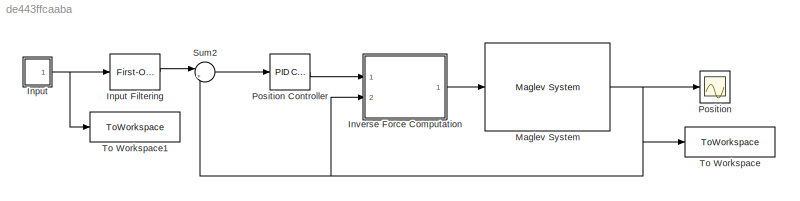
MODEL slx_de443ffcaaba
KIND model
CONFIG AbsTol = auto
CONFIG EnableMultiTasking = off
CONFIG FixedStep = auto
CONFIG MaxStep = auto
CONFIG MinStep = auto
CONFIG RelTol = 1e-3
CONFIG SampleTimeConstraint = Unconstrained
CONFIG SolverName = VariableStepAuto
CONFIG StartTime = 0.0
CONFIG StopTime = 6
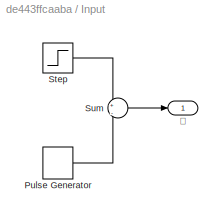
BLOCK [SubSystem] Input
  Ports = [0, 1]
  RequestExecContextInheritance = off
BLOCK [Reference] Input Filtering  REF=spsFirstOrderFilterLib/First-Order
Filter
  Ports = [1, 1]
  SourceBlock = spsFirstOrderFilterLib/First-Order\nFilter
  SourceProductBaseCode = PS
  SourceType = First-Order Filter
BLOCK [DiscretePulseGenerator] Input/Pulse Generator
  Amplitude = d0/2
  Period = 5
  PhaseDelay = 0.5
  Ports = [0, 1]
  PulseType = Time based
  PulseWidth = 50
BLOCK [Step] Input/Step
  After = start
  Before = d0
  SampleTime = 0
  Time = 0
BLOCK [Sum] Input/Sum
  Inputs = +|-
  Ports = [2, 1]
BLOCK [Outport] Input/𝛿
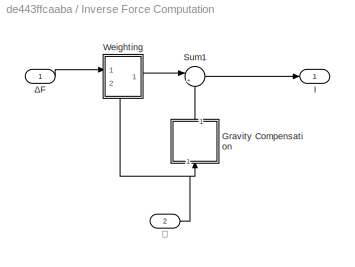
BLOCK [SubSystem] Inverse Force Computation
  Ports = [2, 1]
  RequestExecContextInheritance = off
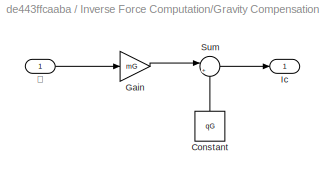
BLOCK [SubSystem] Inverse Force Computation/Gravity Compensation
  NameLocation = right
  Ports = [1, 1]
  RequestExecContextInheritance = off
BLOCK [Constant] Inverse Force Computation/Gravity Compensation/Constant
  NameLocation = right
  Value = qG
BLOCK [Gain] Inverse Force Computation/Gravity Compensation/Gain
  Gain = mG
BLOCK [Outport] Inverse Force Computation/Gravity Compensation/Ic
BLOCK [Sum] Inverse Force Computation/Gravity Compensation/Sum
  Inputs = |++
  Ports = [2, 1]
BLOCK [Inport] Inverse Force Computation/Gravity Compensation/𝛿
BLOCK [Outport] Inverse Force Computation/I
BLOCK [Sum] Inverse Force Computation/Sum1
  Inputs = |++
  Ports = [2, 1]
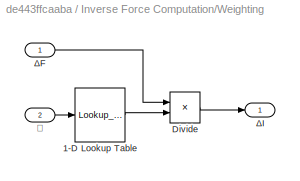
BLOCK [SubSystem] Inverse Force Computation/Weighting
  PortSchema = {"entries":[{"content":{"sides":[{"content":{"connectorIds":["In1"]},"type":"ConnectorPlacement.EquallySpacedRectSide","uuid":"6b47628a-cc08-4372-88a9-27295bde16d5"},{"content":{"connectorIds":["Out1"],"side":"RIGHT"},"type":"ConnectorPlacement.EquallySpacedRectSide","uuid":"4e2a4537-6a79-4c56-b693-16bea0361472"},{"content":{"connectorIds":[],"side":"TOP"},"type":"ConnectorPlacement.EquallySpacedR...<+389ch>
  Ports = [2, 1]
  RequestExecContextInheritance = off
BLOCK [Lookup_n-D] Inverse Force Computation/Weighting/1-D Lookup Table
  BreakpointsForDimension1 = deltasK
  InputPortMap = u0
  InternalRulePriority = Speed
  NumberOfTableDimensions = 1
  Ports = [1, 1]
  RndMeth = Simplest
  Table = grad_est
BLOCK [Product] Inverse Force Computation/Weighting/Divide
  Inputs = */
  Ports = [2, 1]
BLOCK [Inport] Inverse Force Computation/Weighting/ΔF
BLOCK [Outport] Inverse Force Computation/Weighting/ΔI
BLOCK [Inport] Inverse Force Computation/Weighting/𝛿
  Port = 2
BLOCK [Inport] Inverse Force Computation/ΔF
BLOCK [Inport] Inverse Force Computation/𝛿
  Port = 2
BLOCK [Reference] Maglev System  REF=MAGLEV_components/Maglev System
  Ports = [1, 1]
  SourceBlock = MAGLEV_components/Maglev System
  SourceType = Maglev System
BLOCK [Scope] Position
  Floating = off
  NumInputPorts = 1
  Ports = [1]
  ScopeSpecificationString = Simulink.scopes.TimeScopeBlockCfg('CurrentConfiguration', extmgr.ConfigurationSet(extmgr.Configuration('Core','General UI',true),extmgr.Configuration('Core','Source UI',true),extmgr.Configuration('Sources','WiredSimulink',true,'DataLoggingVariableName','ScopeData1'),extmgr.Configuration('Visuals','Time Domain',true,'SerializedDisplays',{struct('MinYLimReal','2.18717','MaxYLimReal','15.31254','YLab...<+1374ch>
BLOCK [Reference] Position Controller  REF=slpidlib/PID Controller
  Ports = [1, 1]
  SourceBlock = slpidlib/PID Controller
  SourceProductBaseCode = SL
  SourceType = PID 1dof
BLOCK [Sum] Sum2
  Inputs = |+-
  Ports = [2, 1]
BLOCK [ToWorkspace] To Workspace
  FixptAsFi = on
  MaxDataPoints = inf
  Ports = [1]
  SampleTime = -1
  SaveFormat = Timeseries
  VariableName = delta
BLOCK [ToWorkspace] To Workspace1
  FixptAsFi = on
  MaxDataPoints = inf
  Ports = [1]
  SampleTime = -1
  SaveFormat = Timeseries
  VariableName = input
LINE Input Filtering:1 -> Sum2:1
LINE Input/Pulse Generator:1 -> Input/Sum:2
LINE Input/Step:1 -> Input/Sum:1
LINE Input/Sum:1 -> Input/𝛿:1
NET Input:1 -> Input Filtering:1, To Workspace1:1
LINE Inverse Force Computation/Gravity Compensation/Constant:1 -> Inverse Force Computation/Gravity Compensation/Sum:2
LINE Inverse Force Computation/Gravity Compensation/Gain:1 -> Inverse Force Computation/Gravity Compensation/Sum:1
LINE Inverse Force Computation/Gravity Compensation/Sum:1 -> Inverse Force Computation/Gravity Compensation/Ic:1
LINE Inverse Force Computation/Gravity Compensation/𝛿:1 -> Inverse Force Computation/Gravity Compensation/Gain:1
LINE Inverse Force Computation/Gravity Compensation:1 -> Inverse Force Computation/Sum1:2
LINE Inverse Force Computation/Sum1:1 -> Inverse Force Computation/I:1
LINE Inverse Force Computation/Weighting/1-D Lookup Table:1 -> Inverse Force Computation/Weighting/Divide:2
LINE Inverse Force Computation/Weighting/Divide:1 -> Inverse Force Computation/Weighting/ΔI:1
LINE Inverse Force Computation/Weighting/ΔF:1 -> Inverse Force Computation/Weighting/Divide:1
LINE Inverse Force Computation/Weighting/𝛿:1 -> Inverse Force Computation/Weighting/1-D Lookup Table:1
LINE Inverse Force Computation/Weighting:1 -> Inverse Force Computation/Sum1:1
LINE Inverse Force Computation/ΔF:1 -> Inverse Force Computation/Weighting:1
NET Inverse Force Computation/𝛿:1 -> Inverse Force Computation/Gravity Compensation:1, Inverse Force Computation/Weighting:2
LINE Inverse Force Computation:1 -> Maglev System:1
NET Maglev System:1 -> Inverse Force Computation:2, Position:1, Sum2:2, To Workspace:1
LINE Position Controller:1 -> Inverse Force Computation:1
LINE Sum2:1 -> Position Controller:1
note: NET lines group one-source signal fan-out (src -> all destinations, sorted); 1:1 wires keep LINE
